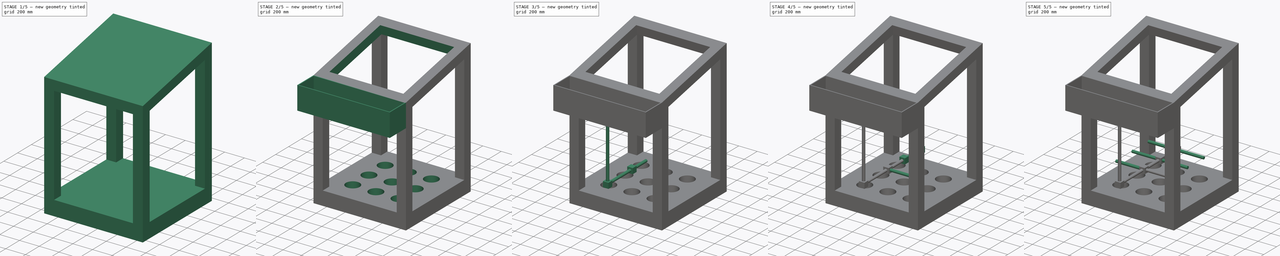
[diagram: build sequence overview — one tinted view per stage of 5, left to right]
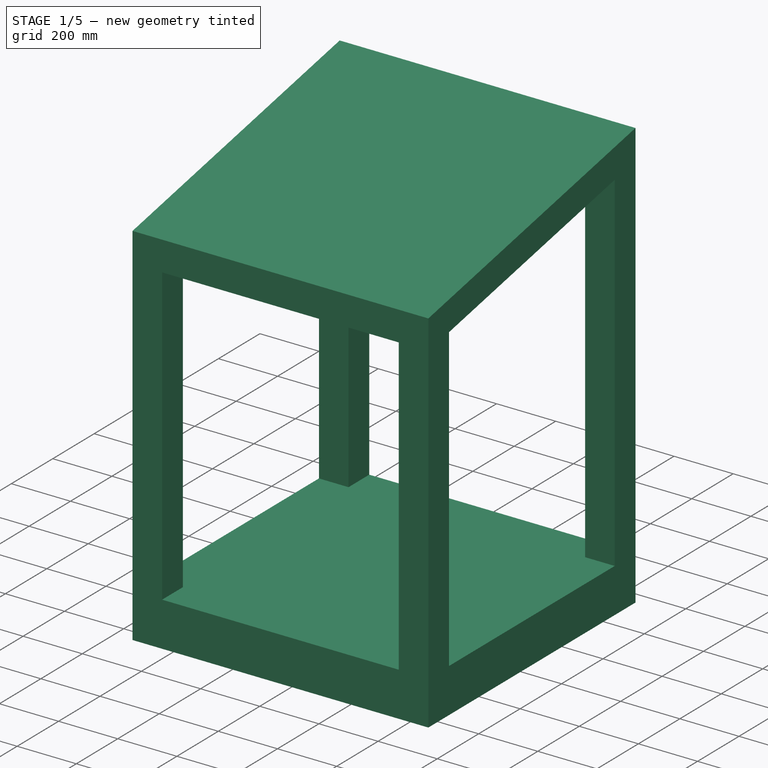
[diagram: stage 1 of 5 — iso view after this stage's code; geometry added in this stage tinted green]
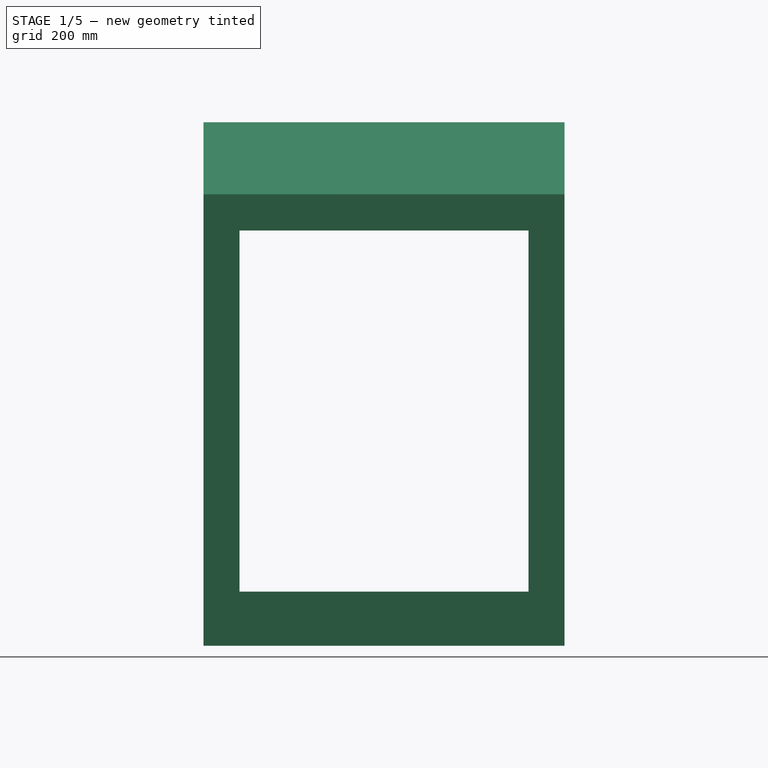
[diagram: stage 1 of 5 — front view after this stage's code; geometry added in this stage tinted green]
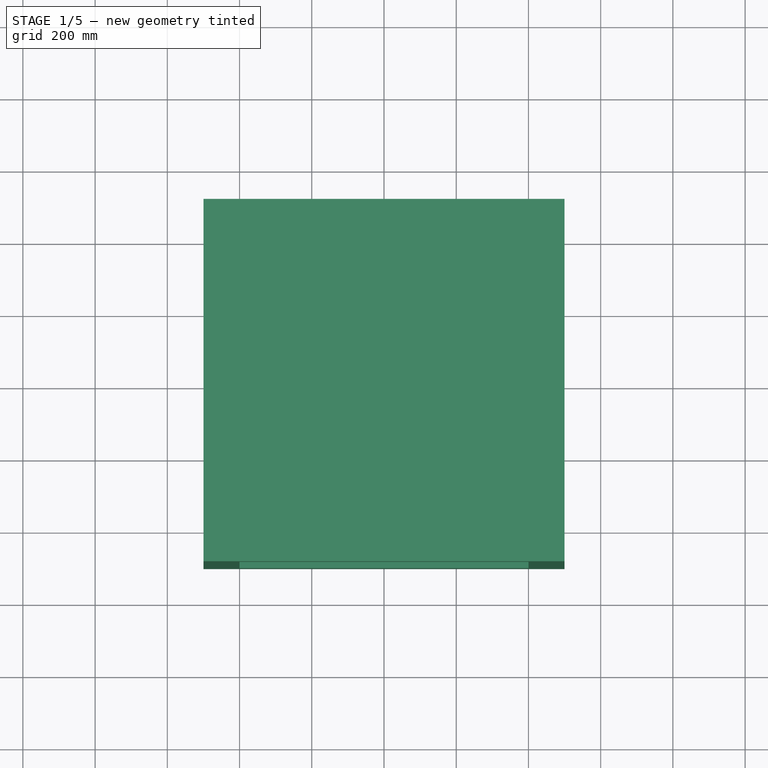
[diagram: stage 1 of 5 — top view after this stage's code; geometry added in this stage tinted green]
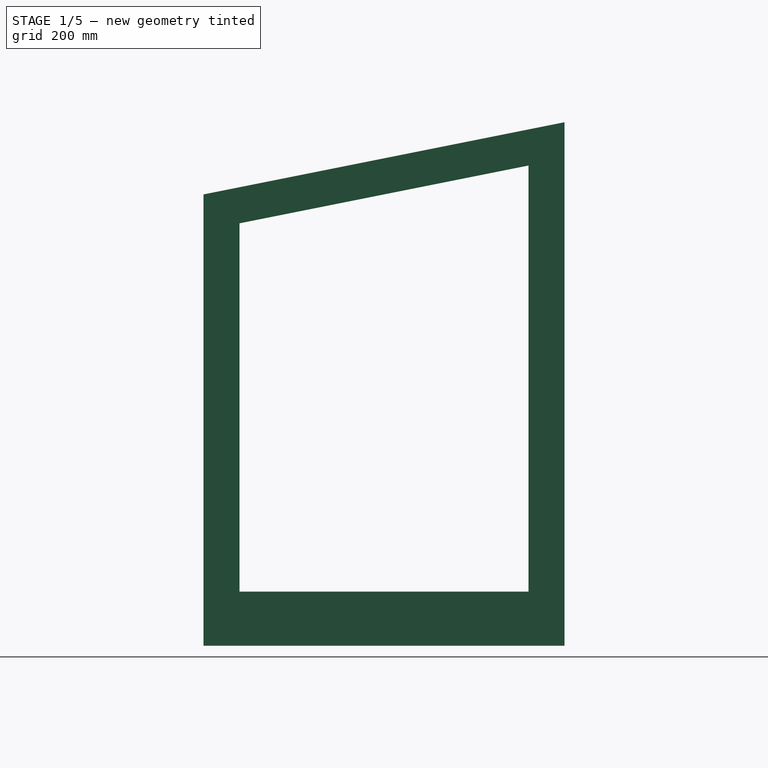
[diagram: stage 1 of 5 — right view after this stage's code; geometry added in this stage tinted green]
FCSTD DOCUMENT  (FreeCAD 0.18R4 (GitTag))
Label: Frame
License: All rights reserved
LicenseURL: http://en.wikipedia.org/wiki/All_rights_reserved
objects: Sketcher::SketchObject×22, PartDesign::Pad×18, PartDesign::Pocket×4, PartDesign::PolarPattern×1, PartDesign::Body×1
note: 68 computed .brp shape members not serialized (recipe doc carries the construction recipe); baked Part::Feature solids carry a one-line shape summary decoded from their .brp

FEATURE [Sketcher::SketchObject] Sketch
  MapMode = 5
  Support = -> [XY_Plane]
  sketch-geometry (4):
    g0: LineSegment StartX=-500 StartY=500 StartZ=0 EndX=500 EndY=500 EndZ=0
    g1: LineSegment StartX=500 StartY=500 StartZ=0 EndX=500 EndY=-500 EndZ=0
    g2: LineSegment StartX=500 StartY=-500 StartZ=0 EndX=-500 EndY=-500 EndZ=0
    g3: LineSegment StartX=-500 StartY=-500 StartZ=0 EndX=-500 EndY=500 EndZ=0
  constraints (12):
    c: Coincident(g0,g1)
    c: Coincident(g1,g2)
    c: Coincident(g2,g3)
    c: Coincident(g3,g0)
    c: Horizontal(g0)
    c: Horizontal(g2)
    c: Vertical(g1)
    c: Vertical(g3)
    c: DistanceX(g0,g0) = 1000
    c: DistanceY(g1,g1) = 1000
    c: DistanceX(g-1,g0) = 500
    c: DistanceY(g-1,g0) = 500
FEATURE [PartDesign::Pad] Pad
  Length = 150
  Length2 = 100
  Profile = -> Sketch
  Type = 0
FEATURE [Sketcher::SketchObject] Sketch001
  MapMode = 5
  Placement = pos=(0,0,150) rot=(0,0,1;0rad)
  Support = -> [Pad]
  sketch-geometry (4):
    g0: LineSegment StartX=-400 StartY=400 StartZ=0 EndX=-500 EndY=400 EndZ=0
    g1: LineSegment StartX=-500 StartY=400 StartZ=0 EndX=-500 EndY=500 EndZ=0
    g2: LineSegment StartX=-500 StartY=500 StartZ=0 EndX=-400 EndY=500 EndZ=0
    g3: LineSegment StartX=-400 StartY=500 StartZ=0 EndX=-400 EndY=400 EndZ=0
  constraints (11):
    c: Coincident(g0,g1)
    c: Coincident(g1,g2)
    c: Coincident(g2,g3)
    c: Coincident(g3,g0)
    c: Horizontal(g0)
    c: Horizontal(g2)
    c: Vertical(g1)
    c: Vertical(g3)
    c: DistanceY(g3,g3) = 100
    c: DistanceX(g2,g2) = 100
    c: DistanceY(g-1,g0) = 400
FEATURE [PartDesign::Pad] Pad001
  BaseFeature = -> Pad
  Length = 1200
  Length2 = 100
  Profile = -> Sketch001
  Type = 0
FEATURE [PartDesign::PolarPattern] PolarPattern
  Angle = 360
  Axis = -> Sketch001 [N_Axis]
  BaseFeature = -> Pad001
  Occurrences = 4
  Originals = -> [Pad001]
FEATURE [Sketcher::SketchObject] Sketch002
  MapMode = 5
  Placement = pos=(500,-6.12e-14,0) rot=(0.57735,0.57735,0.57735;2.0944rad)
  Support = -> [PolarPattern]
  sketch-geometry (3):
    g0: LineSegment StartX=-500 StartY=1150 StartZ=0 EndX=500 EndY=1350 EndZ=0
    g1: LineSegment StartX=500 StartY=1350 StartZ=0 EndX=-500 EndY=1350 EndZ=0
    g2: LineSegment StartX=-500 StartY=1350 StartZ=0 EndX=-500 EndY=1150 EndZ=0
  constraints (9):
    c: Coincident(g0,g1)
    c: Horizontal(g1)
    c: Coincident(g1,g2)
    c: Coincident(g2,g0)
    c: Vertical(g2)
    c: DistanceY(g-1,g0) = 1350
    c: DistanceX(g-1,g0) = 500
    c: DistanceX(g0,g-1) = 500
    c: DistanceY(g-1,g0) = 1150
FEATURE [PartDesign::Pocket] Pocket
  BaseFeature = -> PolarPattern
  Length = 1000
  Length2 = 100
  Profile = -> Sketch002
  Type = 0
FEATURE [Sketcher::SketchObject] Sketch003
  MapMode = 5
  Placement = pos=(500,-6.12e-14,0) rot=(0.57735,0.57735,0.57735;2.0944rad)
  Support = -> [Pocket]
  sketch-geometry (4):
    g0: LineSegment StartX=-500 StartY=1150 StartZ=0 EndX=-500 EndY=1250 EndZ=0
    g1: LineSegment StartX=-500 StartY=1250 StartZ=0 EndX=500 EndY=1450 EndZ=0
    g2: LineSegment StartX=500 StartY=1450 StartZ=0 EndX=500 EndY=1350 EndZ=0
    g3: LineSegment StartX=500 StartY=1350 StartZ=0 EndX=-500 EndY=1150 EndZ=0
  constraints (12):
    c: Vertical(g0)
    c: Coincident(g0,g1)
    c: Coincident(g1,g2)
    c: Vertical(g2)
    c: Coincident(g2,g3)
    c: Coincident(g3,g0)
    c: Parallel(g1,g3)
    c: DistanceX(g0,g-1) = 500
    c: DistanceX(g-1,g2) = 500
    c: DistanceY(g-1,g2) = 1350
    c: DistanceY(g-1,g0) = 1150
    c: DistanceY(g2,g2) = 100
FEATURE [PartDesign::Pad] Pad002
  BaseFeature = -> Pocket
  Length = 1000
  Length2 = 100
  Profile = -> Sketch003
  Reversed = true
  Type = 0
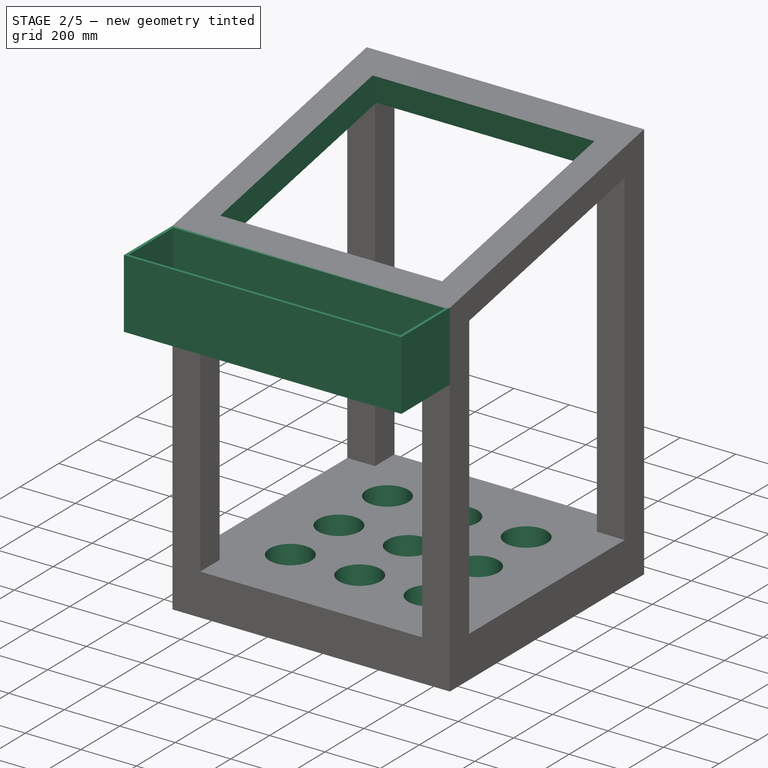
[diagram: stage 2 of 5 — iso view after this stage's code; geometry added in this stage tinted green]
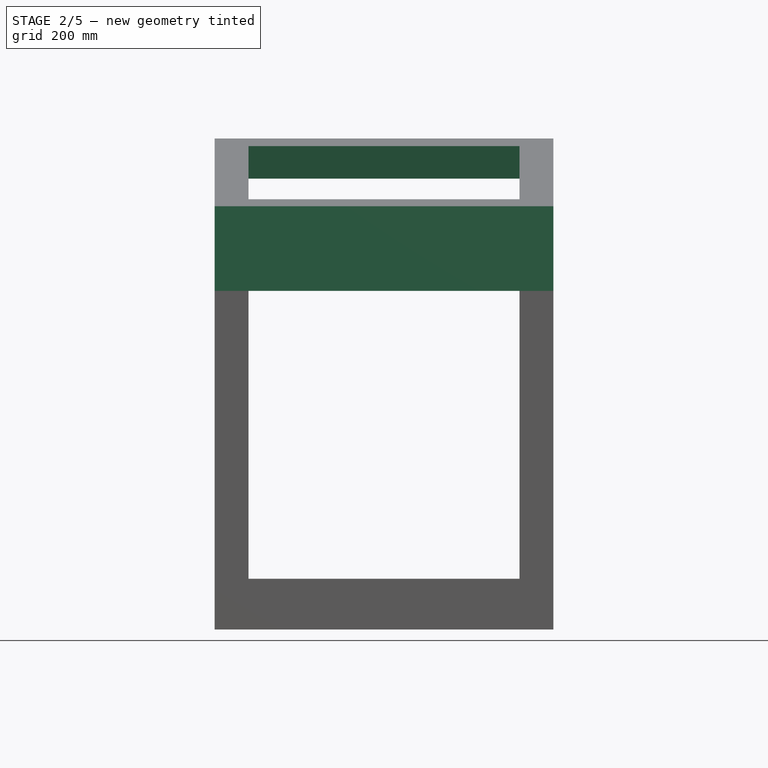
[diagram: stage 2 of 5 — front view after this stage's code; geometry added in this stage tinted green]
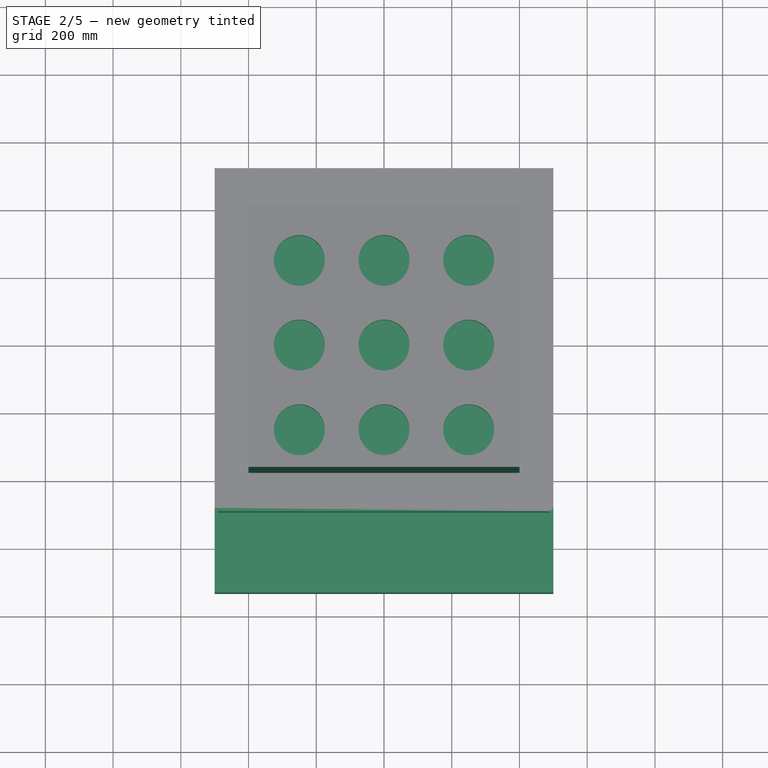
[diagram: stage 2 of 5 — top view after this stage's code; geometry added in this stage tinted green]
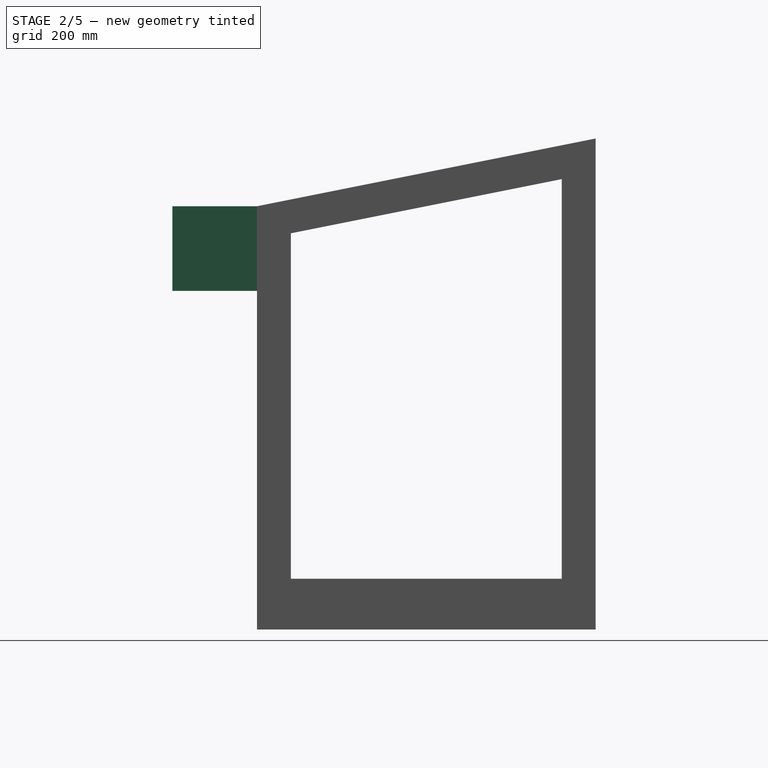
[diagram: stage 2 of 5 — right view after this stage's code; geometry added in this stage tinted green]
FEATURE [Sketcher::SketchObject] Sketch004
  AttachmentOffset = pos=(0,260,0) rot=(0,0,1;0rad)
  MapMode = 5
  Placement = pos=(1.153e-13,-4.66441,1349.07) rot=(1,0,0;0.197396rad)
  Support = -> [Pad002]
  sketch-geometry (4):
    g0: LineSegment StartX=-400 StartY=-400 StartZ=0 EndX=400 EndY=-400 EndZ=0
    g1: LineSegment StartX=400 StartY=-400 StartZ=0 EndX=400 EndY=400 EndZ=0
    g2: LineSegment StartX=400 StartY=400 StartZ=0 EndX=-400 EndY=400 EndZ=0
    g3: LineSegment StartX=-400 StartY=400 StartZ=0 EndX=-400 EndY=-400 EndZ=0
  constraints (12):
    c: Coincident(g0,g1)
    c: Coincident(g1,g2)
    c: Coincident(g2,g3)
    c: Coincident(g3,g0)
    c: Horizontal(g0)
    c: Horizontal(g2)
    c: Vertical(g1)
    c: Vertical(g3)
    c: DistanceX(g2,g2) = 800
    c: DistanceY(g1,g1) = 800
    c: DistanceX(g-1,g1) = 400
    c: DistanceY(g0,g-1) = 400
FEATURE [PartDesign::Pocket] Pocket001
  BaseFeature = -> Pad002
  Length = 150
  Length2 = 100
  Profile = -> Sketch004
  Type = 0
FEATURE [Sketcher::SketchObject] Sketch005
  MapMode = 5
  Placement = pos=(0,0,150) rot=(0,0,1;0rad)
  Support = -> [Pocket001]
  sketch-geometry (9):
    g0: Circle CenterX=-250 CenterY=250 CenterZ=0 NormalX=0 NormalY=0 NormalZ=1 AngleXU=0 Radius=75
    g1: Circle CenterX=250 CenterY=250 CenterZ=0 NormalX=0 NormalY=0 NormalZ=1 AngleXU=0 Radius=75
    g2: Circle CenterX=250 CenterY=-250 CenterZ=0 NormalX=0 NormalY=0 NormalZ=1 AngleXU=0 Radius=75
    g3: Circle CenterX=-250 CenterY=-250 CenterZ=0 NormalX=0 NormalY=0 NormalZ=1 AngleXU=0 Radius=75
    g4: Circle CenterX=0 CenterY=250 CenterZ=0 NormalX=0 NormalY=0 NormalZ=1 AngleXU=0 Radius=75
    g5: Circle CenterX=-250 CenterY=0 CenterZ=0 NormalX=0 NormalY=0 NormalZ=1 AngleXU=0 Radius=75
    g6: Circle CenterX=0 CenterY=0 CenterZ=0 NormalX=0 NormalY=0 NormalZ=1 AngleXU=0 Radius=75
    g7: Circle CenterX=250 CenterY=0 CenterZ=0 NormalX=0 NormalY=0 NormalZ=1 AngleXU=0 Radius=75
    g8: Circle CenterX=0 CenterY=-250 CenterZ=0 NormalX=0 NormalY=0 NormalZ=1 AngleXU=0 Radius=75
  constraints (26):
    c: Coincident(g6,g-1)
    c: Radius(g6) = 75
    c: Horizontal(g5,g6)
    c: Horizontal(g6,g7)
    c: Radius(g7) = 75
    c: Radius(g5) = 75
    c: Radius(g0) = 75
    c: Radius(g4) = 75
    c: Radius(g1) = 75
    c: Radius(g3) = 75
    c: Radius(g8) = 75
    c: Radius(g2) = 75
    c: Vertical(g0,g5)
    c: Vertical(g5,g3)
    c: Vertical(g6,g4)
    c: Vertical(g4,g8)
    c: Vertical(g1,g7)
    c: Vertical(g7,g2)
    c: Horizontal(g3,g8)
    c: Horizontal(g8,g2)
    c: Horizontal(g1,g4)
    c: Horizontal(g4,g0)
    c: DistanceY(g6,g4) = 250
    c: DistanceX(g5,g6) = 250
    c: DistanceX(g6,g1) = 250
    c: DistanceY(g3,g6) = 250
FEATURE [PartDesign::Pocket] Pocket002
  BaseFeature = -> Pocket001
  Length = 100
  Length2 = 100
  Profile = -> Sketch005
  Type = 0
FEATURE [Sketcher::SketchObject] Sketch006
  MapMode = 5
  Placement = pos=(500,-6.12e-14,0) rot=(0.57735,0.57735,0.57735;2.0944rad)
  Support = -> [Pocket002]
  sketch-geometry (4):
    g0: LineSegment StartX=-750 StartY=1250 StartZ=0 EndX=-500 EndY=1250 EndZ=0
    g1: LineSegment StartX=-500 StartY=1250 StartZ=0 EndX=-500 EndY=1000 EndZ=0
    g2: LineSegment StartX=-500 StartY=1000 StartZ=0 EndX=-750 EndY=1000 EndZ=0
    g3: LineSegment StartX=-750 StartY=1000 StartZ=0 EndX=-750 EndY=1250 EndZ=0
  constraints (12):
    c: Coincident(g0,g1)
    c: Coincident(g1,g2)
    c: Coincident(g2,g3)
    c: Coincident(g3,g0)
    c: Horizontal(g0)
    c: Horizontal(g2)
    c: Vertical(g1)
    c: Vertical(g3)
    c: DistanceX(g1,g-1) = 500
    c: DistanceY(g-1,g0) = 1250
    c: DistanceX(g2,g2) = 250
    c: DistanceY(g3,g3) = 250
FEATURE [PartDesign::Pad] Pad003
  BaseFeature = -> Pocket002
  Length = 1000
  Length2 = 100
  Profile = -> Sketch006
  Reversed = true
  Type = 0
FEATURE [Sketcher::SketchObject] Sketch007
  MapMode = 5
  Placement = pos=(1.388e-13,-1.388e-13,1250) rot=(0,0,1;0rad)
  Support = -> [Pad003]
  sketch-geometry (4):
    g0: LineSegment StartX=-490 StartY=-510 StartZ=0 EndX=490 EndY=-510 EndZ=0
    g1: LineSegment StartX=490 StartY=-510 StartZ=0 EndX=490 EndY=-740 EndZ=0
    g2: LineSegment StartX=490 StartY=-740 StartZ=0 EndX=-490 EndY=-740 EndZ=0
    g3: LineSegment StartX=-490 StartY=-740 StartZ=0 EndX=-490 EndY=-510 EndZ=0
  constraints (12):
    c: Coincident(g0,g1)
    c: Coincident(g1,g2)
    c: Coincident(g2,g3)
    c: Coincident(g3,g0)
    c: Horizontal(g0)
    c: Horizontal(g2)
    c: Vertical(g1)
    c: Vertical(g3)
    c: DistanceY(g0,g-1) = 510
    c: DistanceY(g1,g-1) = 740
    c: DistanceX(g0,g0) = 980
    c: DistanceX(g0,g-1) = 490
FEATURE [PartDesign::Pocket] Pocket003
  BaseFeature = -> Pad003
  Length = 240
  Length2 = 100
  Profile = -> Sketch007
  Type = 0
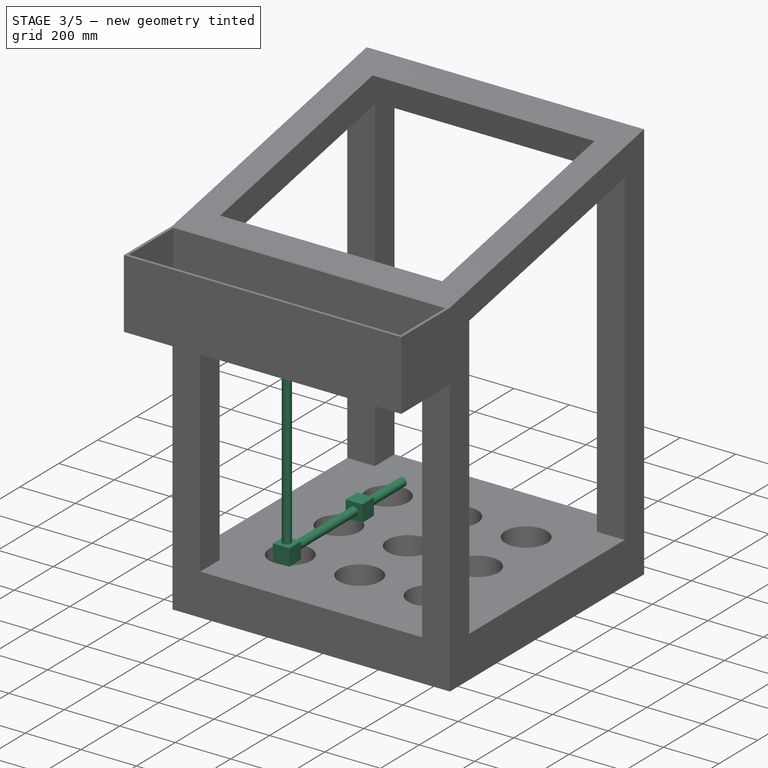
[diagram: stage 3 of 5 — iso view after this stage's code; geometry added in this stage tinted green]
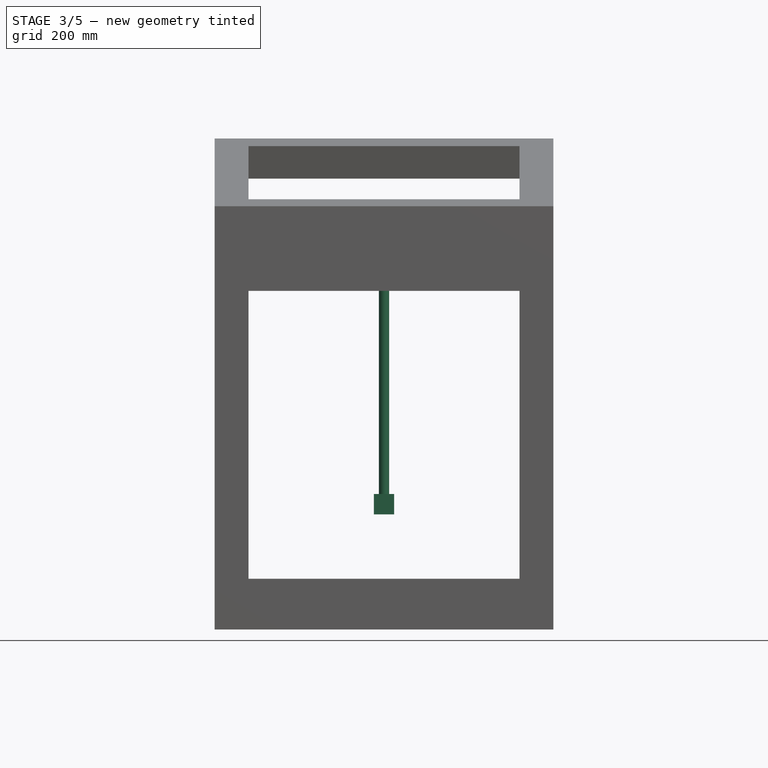
[diagram: stage 3 of 5 — front view after this stage's code; geometry added in this stage tinted green]
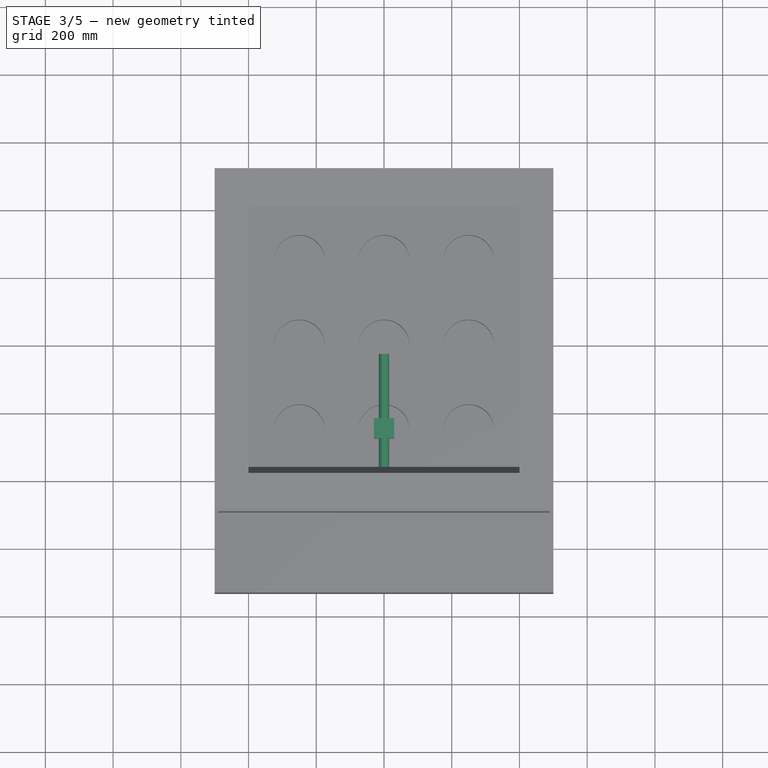
[diagram: stage 3 of 5 — top view after this stage's code; geometry added in this stage tinted green]
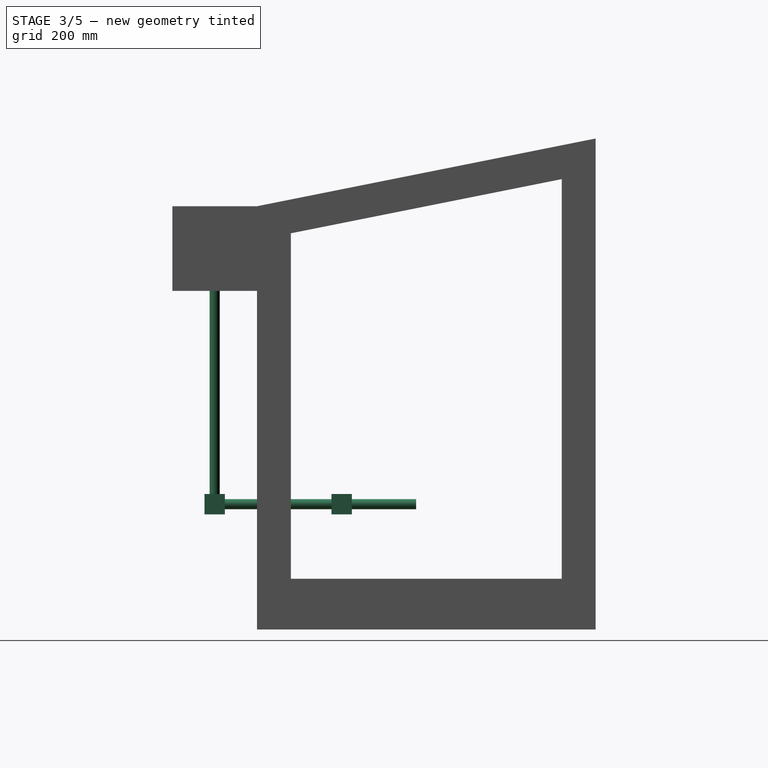
[diagram: stage 3 of 5 — right view after this stage's code; geometry added in this stage tinted green]
FEATURE [Sketcher::SketchObject] Sketch008
  MapMode = 5
  Placement = pos=(1.11e-13,-1.11e-13,1000) rot=(1,0,0;3.14159rad)
  Support = -> [Pocket003]
  sketch-geometry (1):
    g0: Circle CenterX=0 CenterY=625 CenterZ=0 NormalX=0 NormalY=0 NormalZ=1 AngleXU=0 Radius=15
  constraints (3):
    c: Vertical(g0,g-1)
    c: Radius(g0) = 15
    c: DistanceY(g-1,g0) = 625
FEATURE [PartDesign::Pad] Pad004
  BaseFeature = -> Pocket003
  Length = 600
  Length2 = 100
  Profile = -> Sketch008
  Type = 0
FEATURE [Sketcher::SketchObject] Sketch009
  MapMode = 5
  Placement = pos=(0,0,400) rot=(1,0,0;3.14159rad)
  Support = -> [Pad004]
  sketch-geometry (4):
    g0: LineSegment StartX=-30 StartY=655 StartZ=0 EndX=30 EndY=655 EndZ=0
    g1: LineSegment StartX=30 StartY=655 StartZ=0 EndX=30 EndY=595 EndZ=0
    g2: LineSegment StartX=30 StartY=595 StartZ=0 EndX=-30 EndY=595 EndZ=0
    g3: LineSegment StartX=-30 StartY=595 StartZ=0 EndX=-30 EndY=655 EndZ=0
  constraints (12):
    c: Coincident(g0,g1)
    c: Coincident(g1,g2)
    c: Coincident(g2,g3)
    c: Coincident(g3,g0)
    c: Horizontal(g0)
    c: Horizontal(g2)
    c: Vertical(g1)
    c: Vertical(g3)
    c: DistanceX(g0,g0) = 60
    c: DistanceY(g1,g1) = 60
    c: DistanceX(g2,g-1) = 30
    c: DistanceY(g-1,g1) = 595
FEATURE [PartDesign::Pad] Pad005
  BaseFeature = -> Pad004
  Length = 60
  Length2 = 100
  Profile = -> Sketch009
  Type = 0
FEATURE [Sketcher::SketchObject] Sketch010
  MapMode = 5
  Placement = pos=(0,-595,0) rot=(0,0.707107,0.707107;3.14159rad)
  Support = -> [Pad005]
  sketch-geometry (1):
    g0: Circle CenterX=0 CenterY=370 CenterZ=0 NormalX=0 NormalY=0 NormalZ=1 AngleXU=0 Radius=15
  constraints (3):
    c: Vertical(g-1,g0)
    c: Radius(g0) = 15
    c: DistanceY(g-1,g0) = 370
FEATURE [PartDesign::Pad] Pad006
  BaseFeature = -> Pad005
  Length = 315
  Length2 = 100
  Profile = -> Sketch010
  Type = 0
FEATURE [Sketcher::SketchObject] Sketch012
  MapMode = 5
  Placement = pos=(0,-280,0) rot=(0,0.707107,0.707107;3.14159rad)
  Support = -> [Pad006]
  sketch-geometry (4):
    g0: LineSegment StartX=-30 StartY=400 StartZ=0 EndX=30 EndY=400 EndZ=0
    g1: LineSegment StartX=30 StartY=400 StartZ=0 EndX=30 EndY=340 EndZ=0
    g2: LineSegment StartX=30 StartY=340 StartZ=0 EndX=-30 EndY=340 EndZ=0
    g3: LineSegment StartX=-30 StartY=340 StartZ=0 EndX=-30 EndY=400 EndZ=0
  constraints (12):
    c: Coincident(g0,g1)
    c: Coincident(g1,g2)
    c: Coincident(g2,g3)
    c: Coincident(g3,g0)
    c: Horizontal(g0)
    c: Horizontal(g2)
    c: Vertical(g1)
    c: Vertical(g3)
    c: DistanceX(g0,g0) = 60
    c: DistanceY(g1,g1) = 60
    c: DistanceY(g-1,g1) = 340
    c: DistanceX(g-1,g1) = 30
FEATURE [PartDesign::Pad] Pad007
  BaseFeature = -> Pad006
  Length = 60
  Length2 = 100
  Profile = -> Sketch012
  Type = 0
FEATURE [Sketcher::SketchObject] Sketch013
  MapMode = 5
  Placement = pos=(0,-220,-2.084e-13) rot=(0,0.707107,0.707107;3.14159rad)
  Support = -> [Pad007]
  sketch-geometry (1):
    g0: Circle CenterX=0 CenterY=370 CenterZ=0 NormalX=0 NormalY=0 NormalZ=1 AngleXU=0 Radius=15
  constraints (3):
    c: Radius(g0) = 15
    c: Vertical(g-1,g0)
    c: DistanceY(g-1,g0) = 370
FEATURE [PartDesign::Pad] Pad008
  BaseFeature = -> Pad007
  Length = 190
  Length2 = 100
  Profile = -> Sketch013
  Type = 0
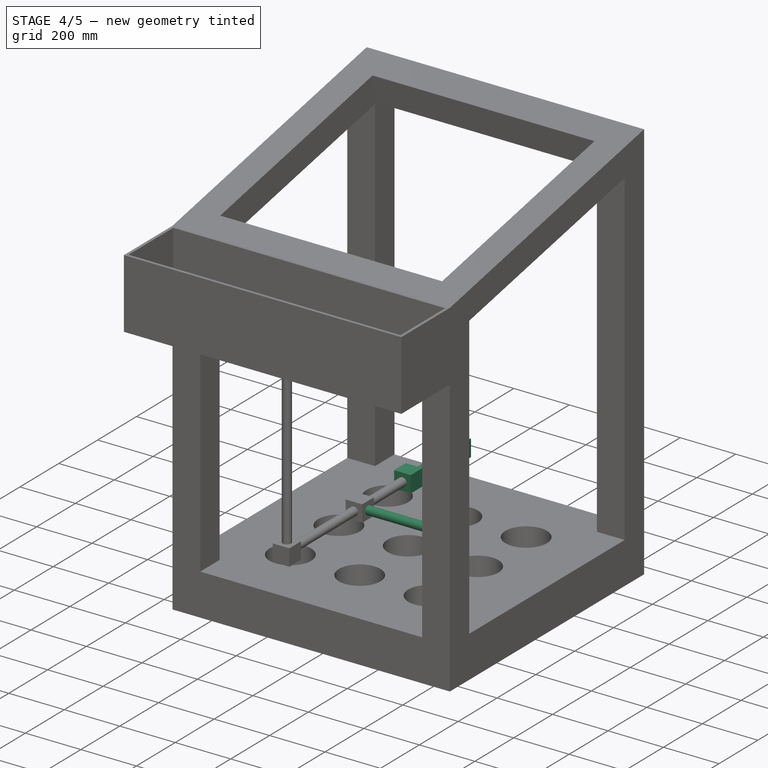
[diagram: stage 4 of 5 — iso view after this stage's code; geometry added in this stage tinted green]
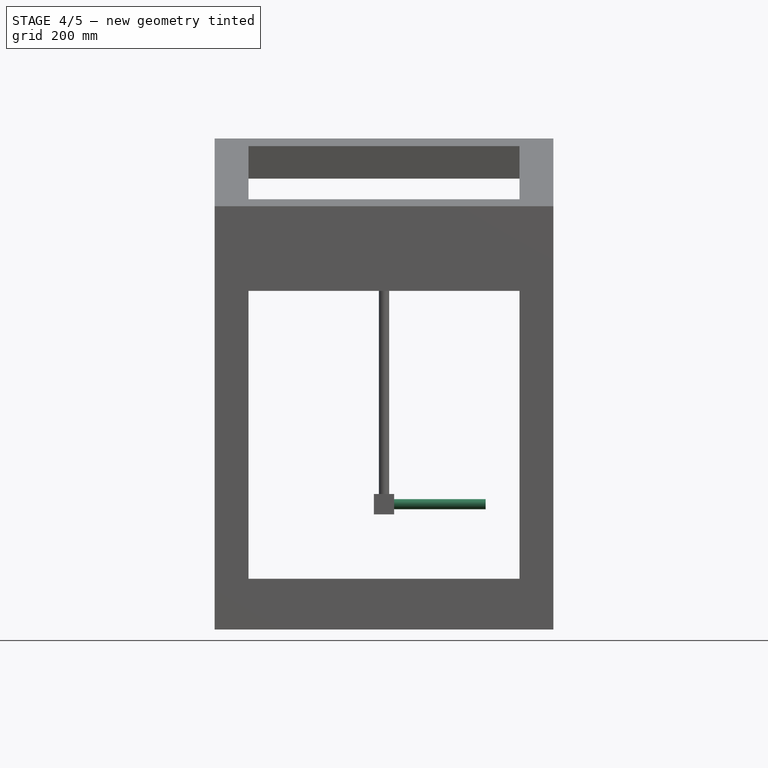
[diagram: stage 4 of 5 — front view after this stage's code; geometry added in this stage tinted green]
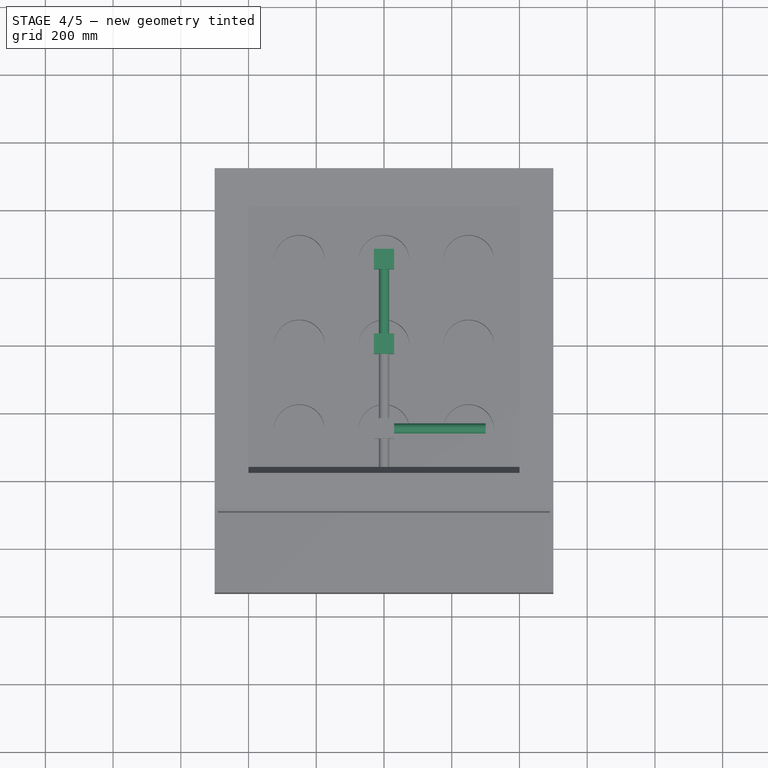
[diagram: stage 4 of 5 — top view after this stage's code; geometry added in this stage tinted green]
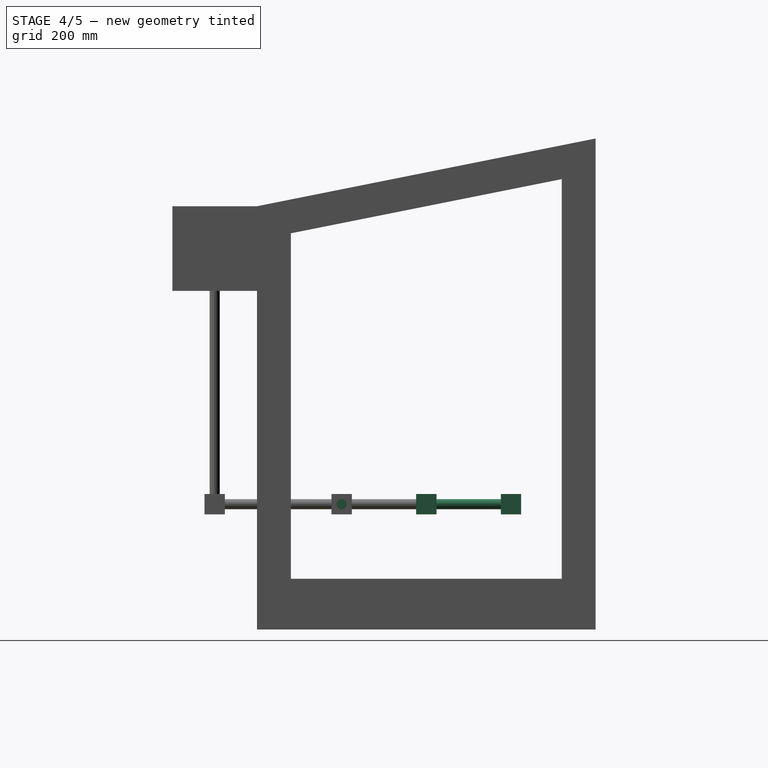
[diagram: stage 4 of 5 — right view after this stage's code; geometry added in this stage tinted green]
FEATURE [Sketcher::SketchObject] Sketch014
  MapMode = 5
  Placement = pos=(1.89e-14,-30,-3.28e-14) rot=(0,0.707107,0.707107;3.14159rad)
  Support = -> [Pad008]
  sketch-geometry (4):
    g0: LineSegment StartX=-30 StartY=400 StartZ=0 EndX=30 EndY=400 EndZ=0
    g1: LineSegment StartX=30 StartY=400 StartZ=0 EndX=30 EndY=340 EndZ=0
    g2: LineSegment StartX=30 StartY=340 StartZ=0 EndX=-30 EndY=340 EndZ=0
    g3: LineSegment StartX=-30 StartY=340 StartZ=0 EndX=-30 EndY=400 EndZ=0
  constraints (12):
    c: Coincident(g0,g1)
    c: Coincident(g1,g2)
    c: Coincident(g2,g3)
    c: Coincident(g3,g0)
    c: Horizontal(g0)
    c: Horizontal(g2)
    c: Vertical(g1)
    c: Vertical(g3)
    c: DistanceX(g0,g0) = 60
    c: DistanceY(g1,g1) = 60
    c: DistanceX(g2,g-1) = 30
    c: DistanceY(g-1,g2) = 340
FEATURE [PartDesign::Pad] Pad009
  BaseFeature = -> Pad008
  Length = 60
  Length2 = 100
  Profile = -> Sketch014
  Type = 0
FEATURE [Sketcher::SketchObject] Sketch015
  MapMode = 5
  Placement = pos=(-1.87e-14,30,3.29e-14) rot=(0,0.707107,0.707107;3.14159rad)
  Support = -> [Pad009]
  sketch-geometry (1):
    g0: Circle CenterX=0 CenterY=370 CenterZ=0 NormalX=0 NormalY=0 NormalZ=1 AngleXU=0 Radius=15
  constraints (3):
    c: Vertical(g-1,g0)
    c: DistanceY(g-1,g0) = 370
    c: Radius(g0) = 15
FEATURE [PartDesign::Pad] Pad010
  BaseFeature = -> Pad009
  Length = 190
  Length2 = 100
  Profile = -> Sketch015
  Type = 0
FEATURE [Sketcher::SketchObject] Sketch016
  MapMode = 5
  Placement = pos=(-1.39e-13,220,2.407e-13) rot=(0,0.707107,0.707107;3.14159rad)
  Support = -> [Pad010]
  sketch-geometry (4):
    g0: LineSegment StartX=-30 StartY=400 StartZ=0 EndX=30 EndY=400 EndZ=0
    g1: LineSegment StartX=30 StartY=400 StartZ=0 EndX=30 EndY=340 EndZ=0
    g2: LineSegment StartX=30 StartY=340 StartZ=0 EndX=-30 EndY=340 EndZ=0
    g3: LineSegment StartX=-30 StartY=340 StartZ=0 EndX=-30 EndY=400 EndZ=0
  constraints (12):
    c: Coincident(g0,g1)
    c: Coincident(g1,g2)
    c: Coincident(g2,g3)
    c: Coincident(g3,g0)
    c: Horizontal(g0)
    c: Horizontal(g2)
    c: Vertical(g1)
    c: Vertical(g3)
    c: DistanceY(g1,g1) = 60
    c: DistanceX(g0,g0) = 60
    c: DistanceX(g2,g-1) = 30
    c: DistanceY(g-1,g2) = 340
FEATURE [PartDesign::Pad] Pad011
  BaseFeature = -> Pad010
  Length = 60
  Length2 = 100
  Profile = -> Sketch016
  Type = 0
FEATURE [Sketcher::SketchObject] Sketch017
  MapMode = 5
  Placement = pos=(30,0,0) rot=(0.57735,0.57735,0.57735;2.0944rad)
  Support = -> [Pad011]
  sketch-geometry (1):
    g0: Circle CenterX=-250 CenterY=370 CenterZ=0 NormalX=0 NormalY=0 NormalZ=1 AngleXU=0 Radius=15
  constraints (3):
    c: DistanceX(g0,g-1) = 250
    c: DistanceY(g-1,g0) = 370
    c: Radius(g0) = 15
FEATURE [PartDesign::Pad] Pad012
  BaseFeature = -> Pad011
  Length = 270
  Length2 = 100
  Profile = -> Sketch017
  Type = 0
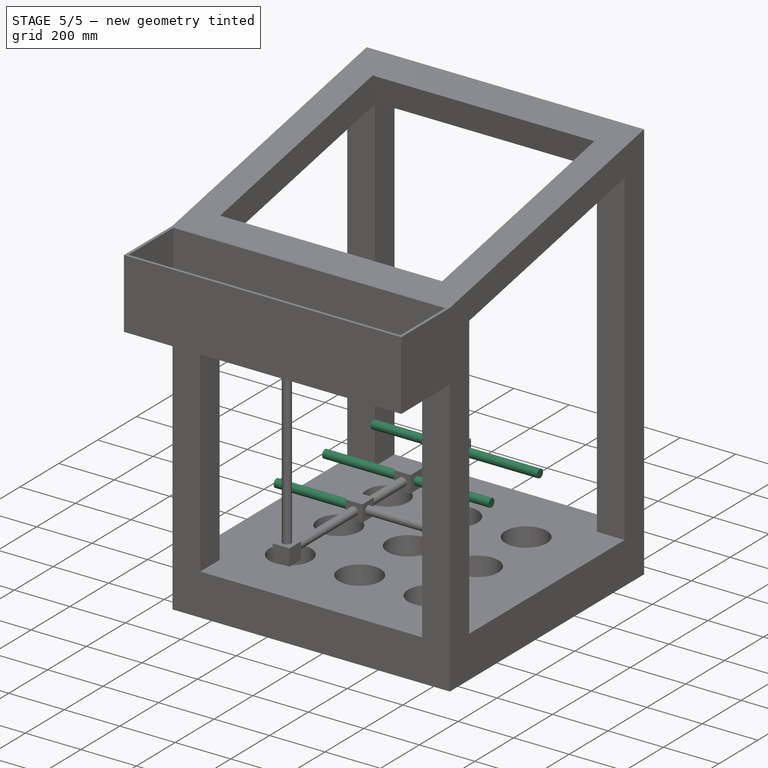
[diagram: stage 5 of 5 — iso view after this stage's code; geometry added in this stage tinted green]
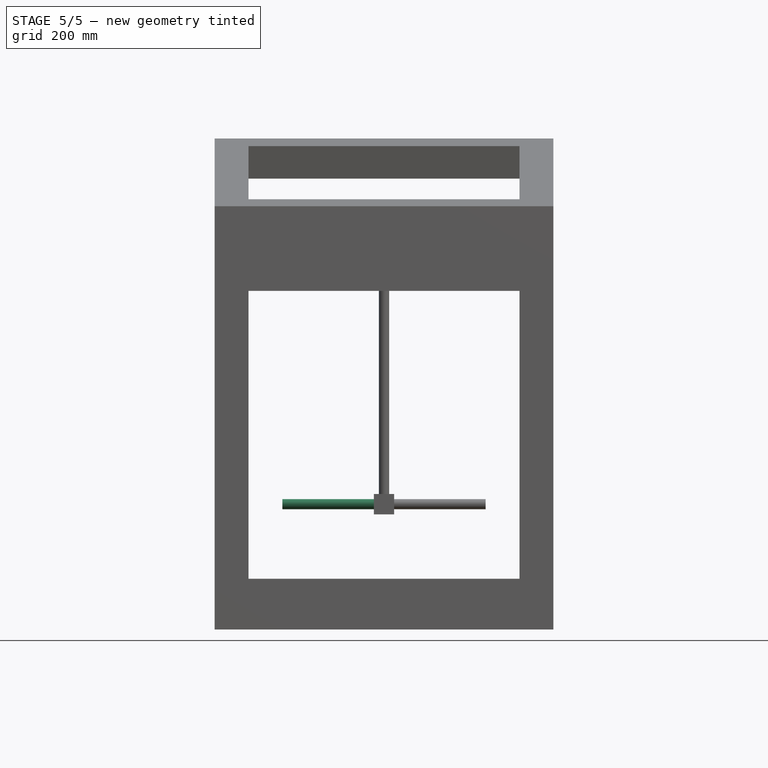
[diagram: stage 5 of 5 — front view after this stage's code; geometry added in this stage tinted green]
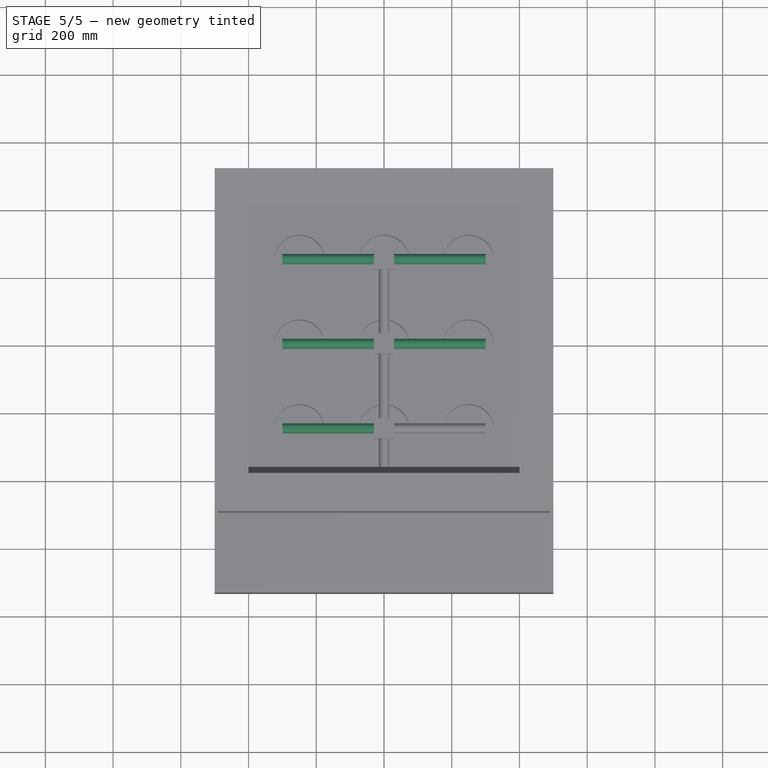
[diagram: stage 5 of 5 — top view after this stage's code; geometry added in this stage tinted green]
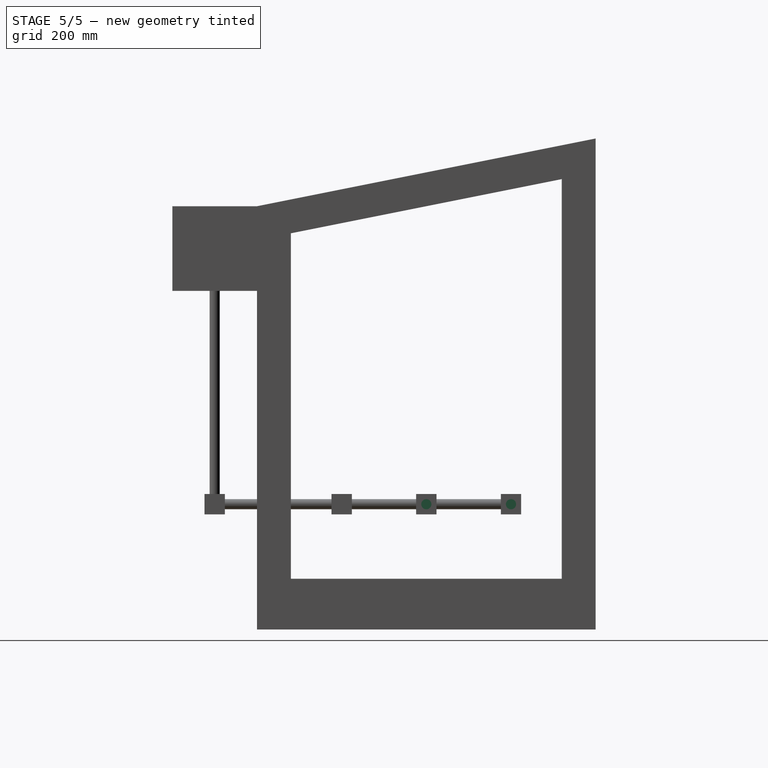
[diagram: stage 5 of 5 — right view after this stage's code; geometry added in this stage tinted green]
FEATURE [Sketcher::SketchObject] Sketch018
  MapMode = 5
  Placement = pos=(30,1.89e-14,0) rot=(0.57735,0.57735,0.57735;2.0944rad)
  Support = -> [Pad012]
  sketch-geometry (1):
    g0: Circle CenterX=0 CenterY=370 CenterZ=0 NormalX=0 NormalY=0 NormalZ=1 AngleXU=0 Radius=15
  constraints (3):
    c: Vertical(g0,g-1)
    c: DistanceY(g-1,g0) = 370
    c: Radius(g0) = 15
FEATURE [PartDesign::Pad] Pad013
  BaseFeature = -> Pad012
  Length = 270
  Length2 = 100
  Profile = -> Sketch018
  Type = 0
FEATURE [Sketcher::SketchObject] Sketch019
  MapMode = 5
  Placement = pos=(30,1.89e-14,0) rot=(0.57735,0.57735,0.57735;2.0944rad)
  Support = -> [Pad013]
  sketch-geometry (1):
    g0: Circle CenterX=250 CenterY=370 CenterZ=0 NormalX=0 NormalY=0 NormalZ=1 AngleXU=0 Radius=15
  constraints (3):
    c: DistanceX(g-1,g0) = 250
    c: DistanceY(g-1,g0) = 370
    c: Radius(g0) = 15
FEATURE [PartDesign::Pad] Pad014
  BaseFeature = -> Pad013
  Length = 270
  Length2 = 100
  Profile = -> Sketch019
  Type = 0
FEATURE [Sketcher::SketchObject] Sketch020
  MapMode = 5
  Placement = pos=(-30,-1.89e-14,0) rot=(0.57735,-0.57735,-0.57735;2.0944rad)
  Support = -> [Pad014]
  sketch-geometry (1):
    g0: Circle CenterX=-250 CenterY=370 CenterZ=0 NormalX=0 NormalY=0 NormalZ=1 AngleXU=0 Radius=15
  constraints (3):
    c: DistanceX(g0,g-1) = 250
    c: DistanceY(g-1,g0) = 370
    c: Radius(g0) = 15
FEATURE [PartDesign::Pad] Pad015
  BaseFeature = -> Pad014
  Length = 270
  Length2 = 100
  Profile = -> Sketch020
  Type = 0
FEATURE [Sketcher::SketchObject] Sketch021
  MapMode = 5
  Placement = pos=(-30,-1.89e-14,0) rot=(0.57735,-0.57735,-0.57735;2.0944rad)
  Support = -> [Pad015]
  sketch-geometry (1):
    g0: Circle CenterX=0 CenterY=370 CenterZ=0 NormalX=0 NormalY=0 NormalZ=1 AngleXU=0 Radius=15
  constraints (3):
    c: Vertical(g0,g-1)
    c: DistanceY(g-1,g0) = 370
    c: Radius(g0) = 15
FEATURE [PartDesign::Pad] Pad016
  BaseFeature = -> Pad015
  Length = 270
  Length2 = 100
  Profile = -> Sketch021
  Type = 0
FEATURE [Sketcher::SketchObject] Sketch022
  MapMode = 5
  Placement = pos=(-30,0,0) rot=(-0.57735,0.57735,0.57735;4.18879rad)
  Support = -> [Pad016]
  sketch-geometry (1):
    g0: Circle CenterX=250 CenterY=370 CenterZ=0 NormalX=0 NormalY=0 NormalZ=1 AngleXU=0 Radius=15
  constraints (3):
    c: DistanceX(g-1,g0) = 250
    c: DistanceY(g-1,g0) = 370
    c: Radius(g0) = 15
FEATURE [PartDesign::Pad] Pad017
  BaseFeature = -> Pad016
  Length = 270
  Length2 = 100
  Profile = -> Sketch022
  Type = 0
FEATURE [PartDesign::Body] Body
  Group = -> [Sketch,Pad,Sketch001,Pad001,PolarPattern,Sketch002,Pocket,Sketch003,Pad002,Sketch004,Pocket001,Sketch005,Pocket002,Sketch006,Pad003,Sketch007,Pocket003,Sketch008,Pad004,Sketch009,Pad005,Sketch010,Pad006,Sketch012,Pad007,Sketch013,Pad008,Sketch014,Pad009,Sketch015,Pad010,Sketch016,Pad011,Sketch017,Pad012,Sketch018,Pad013,Sketch019,Pad014,Sketch020,Pad015,Sketch021,Pad016,Sketch022,Pad017]
  Origin = -> Origin
  Tip = -> Pad017
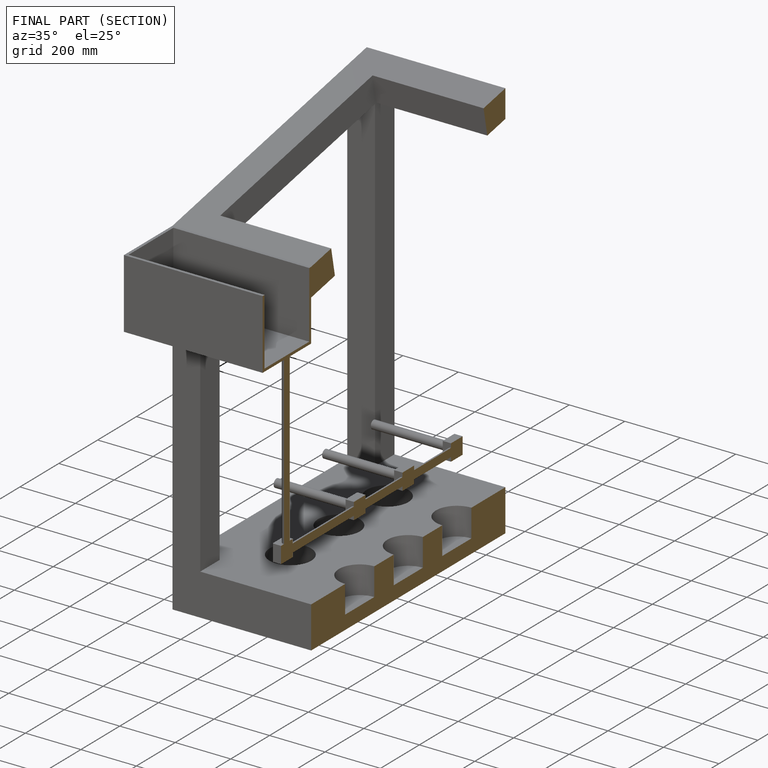
[diagram: finished part — half-section view (interior)]
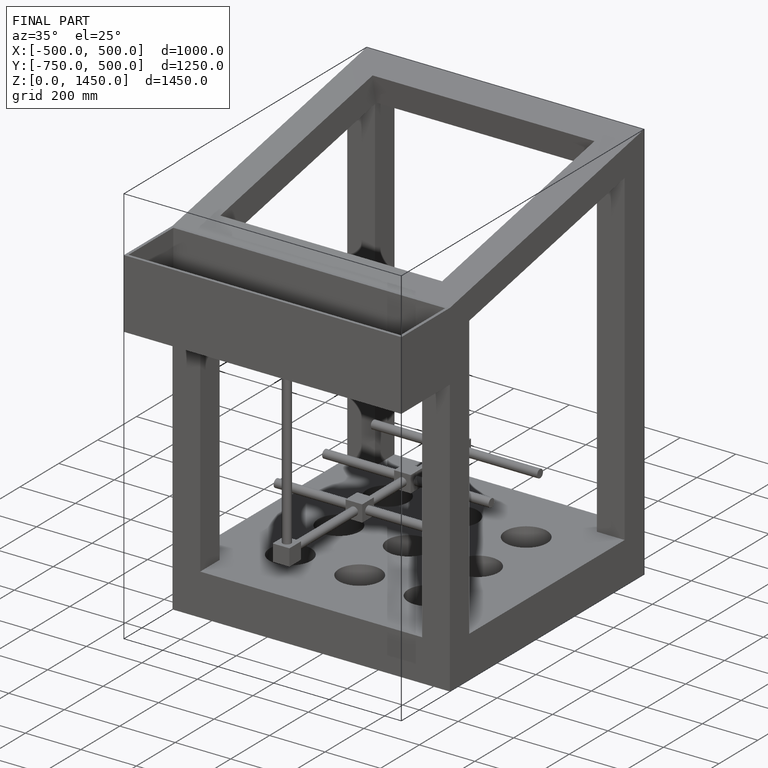
[diagram: finished part — iso view with bounding-box wireframe]
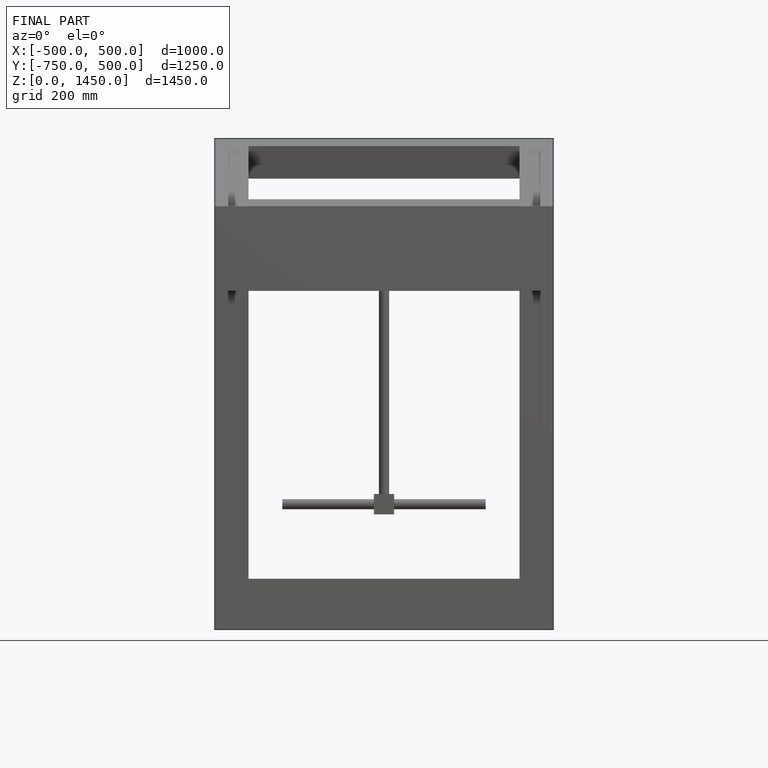
[diagram: finished part — front view with bounding-box wireframe]
